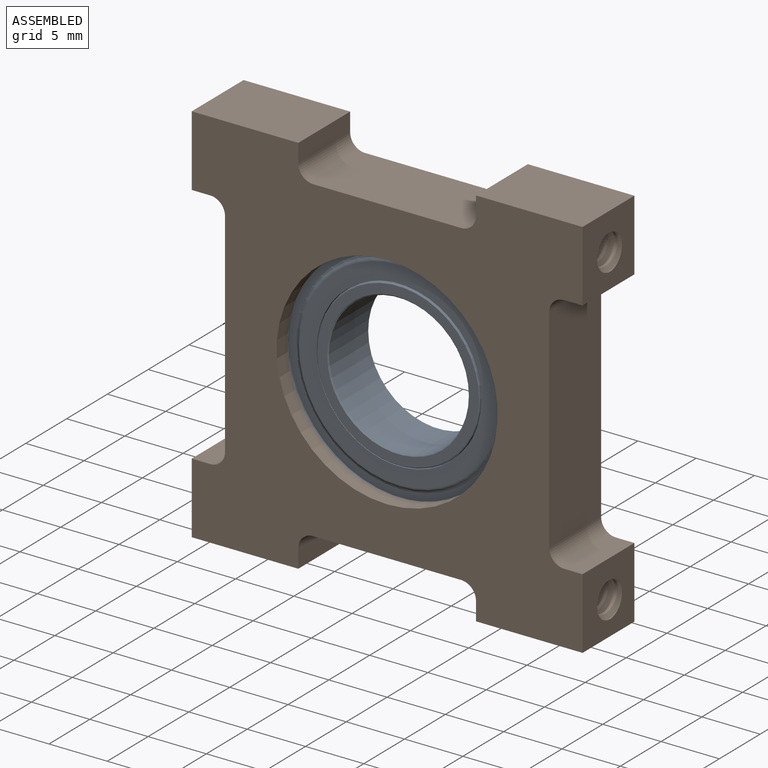
[diagram: assembled view]
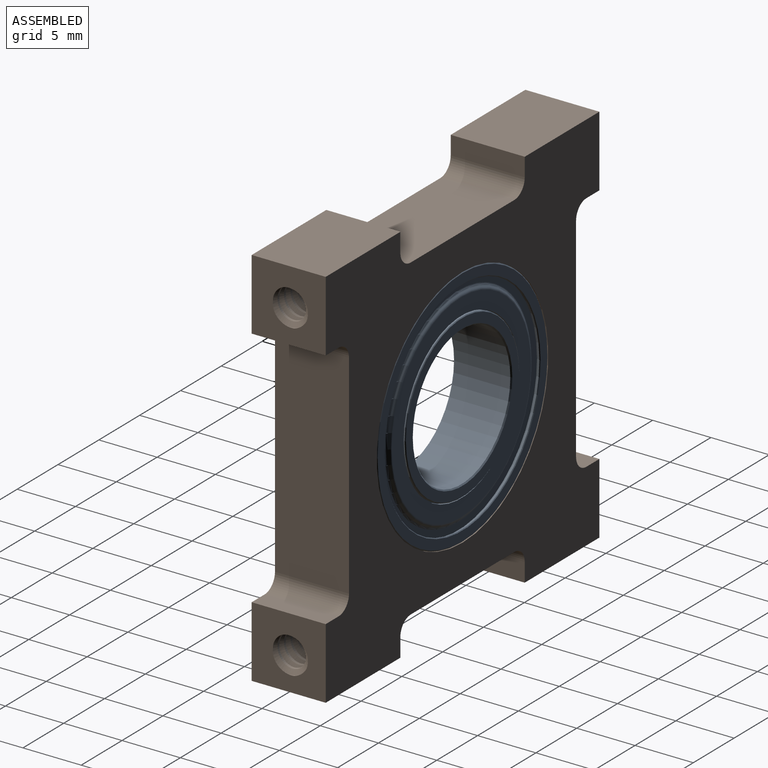
[diagram: assembled view, second angle]
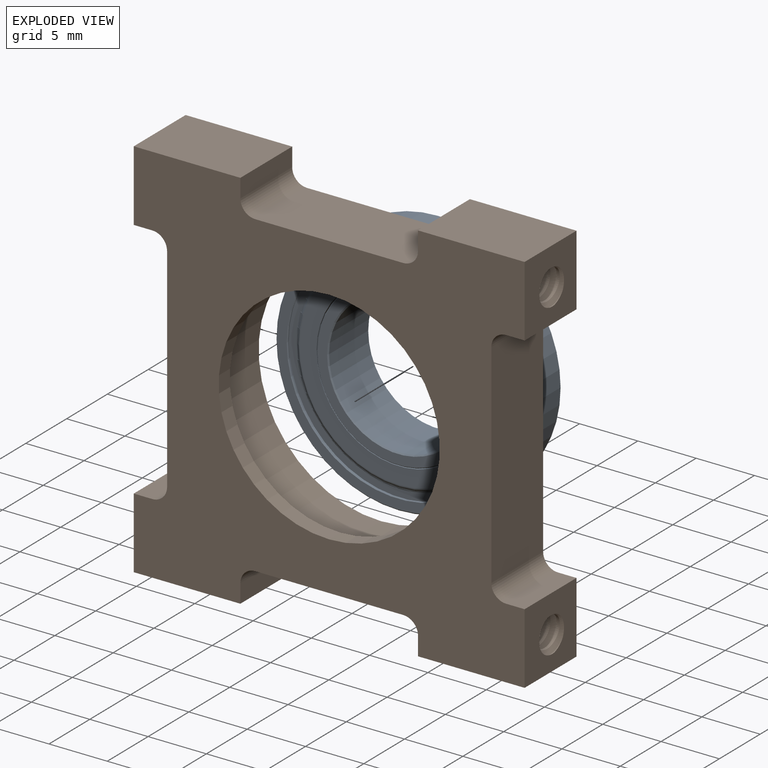
[diagram: exploded view]
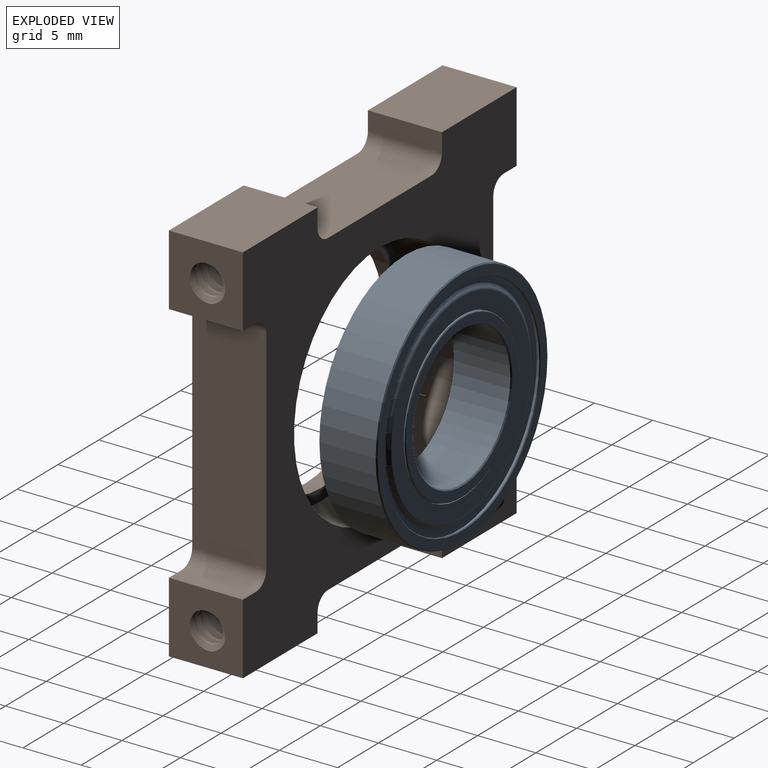
[diagram: exploded view, second angle]
ASSEMBLY  parts=2 mates=2
PART A: 36 faces, bbox 21x5x21 mm
  f0: cone r=6.94mm half-angle=45deg, axis (0,-1,0), area 3.9mm2, adj f20,f27
  f1: cone r=9.5mm half-angle=45deg, axis (0,1,0), area 5.4mm2, adj f21,f28
  f2: cone r=7mm half-angle=45deg, axis (0,1,0), area 3.9mm2, adj f18,f29
  f3: cone r=9.56mm half-angle=45deg, axis (0,-1,0), area 5.4mm2, adj f19,f26
  f4: cylinder r=7.08mm len=14.17mm, axis (0,-1,0), area 11.3mm2, adj f24,f35
  f5: cylinder r=7.08mm len=14.17mm, axis (0,1,0), area 11.3mm2, adj f25,f34
  f6: torus R=8.52mm, axis (0,-1,0), area 10.8mm2, adj f11,f24
  f7: torus R=8.98mm, axis (0,-1,0), area 11.1mm2, adj f11,f32
  f8: torus R=8.98mm, axis (0,1,0), area 11.1mm2, adj f10,f31
  f9: torus R=8.52mm, axis (0,1,0), area 10.8mm2, adj f10,f25
  f10: cone r=8.62mm half-angle=45deg, axis (0,-1,0), area 8.2mm2, adj f8,f9
  f11: cone r=8.88mm half-angle=45deg, axis (0,1,0), area 8.2mm2, adj f6,f7
  f12: cylinder r=9.63mm len=19.25mm, axis (0,-1,0), area 15.4mm2, adj f32,f33
  f13: cylinder r=9.63mm len=19.25mm, axis (0,1,0), area 15.4mm2, adj f30,f31
  f14: cone r=6mm half-angle=45deg, axis (0,1,0), area 5.4mm2, adj f22,f27
  f15: cone r=6.1mm half-angle=45deg, axis (0,-1,0), area 5.4mm2, adj f22,f29
  f16: cone r=10.4mm half-angle=45deg, axis (0,-1,0), area 9.3mm2, adj f23,f28
  f17: cone r=10.5mm half-angle=45deg, axis (0,1,0), area 9.3mm2, adj f23,f26
  f18: cylinder r=7mm len=14mm, axis (0,-1,0), area 12.8mm2, adj f2,f35
  f19: cylinder r=9.5mm len=19mm, axis (0,-1,0), area 2.2mm2, adj f3,f33
  f20: cylinder r=7mm len=14mm, axis (0,1,0), area 12.8mm2, adj f0,f34
  f21: cylinder r=9.5mm len=19mm, axis (0,1,0), area 2.2mm2, adj f1,f30
  f22: cylinder r=6mm len=12mm, axis (0,-1,0), area 181mm2, adj f14,f15
  f23: cylinder r=10.5mm len=21mm, axis (0,-1,0), area 316.7mm2, adj f16,f17
  f24: plane 17.04x17.04mm, normal (0,-1,0), area 70.4mm2, adj f4,f6
  f25: plane 17.04x17.04mm, normal (0,1,0), area 70.4mm2, adj f5,f9
  f26: plane 20.8x20.8mm, normal (0,-1,0), area 52.5mm2, adj f3,f17
  f27: plane 13.87x13.87mm, normal (0,1,0), area 34.3mm2, adj f0,f14
  f28: plane 20.8x20.8mm, normal (0,1,0), area 52.5mm2, adj f1,f16
  f29: plane 13.87x13.87mm, normal (0,-1,0), area 34.3mm2, adj f2,f15
  f30: plane 19.25x19.25mm, normal (0,-1,0), area 7.6mm2, adj f13,f21
  f31: plane 19.25x19.25mm, normal (0,1,0), area 37.6mm2, adj f8,f13
  f32: plane 19.25x19.25mm, normal (0,-1,0), area 37.6mm2, adj f7,f12
  f33: plane 19.25x19.25mm, normal (0,1,0), area 7.6mm2, adj f12,f19
  f34: plane 14.17x14.17mm, normal (0,1,0), area 3.7mm2, adj f5,f20
  f35: plane 14.17x14.17mm, normal (0,-1,0), area 3.7mm2, adj f4,f18
PART B: 89 faces, bbox 34.2x6.5x33.2 mm
  f0: cylinder r=1.75mm len=6.54mm, axis (1,0,0), area 9mm2, adj f47,f86,f87,f88
  f1: cylinder r=1.75mm len=6.54mm, axis (1,0,0), area 9mm2, adj f48,f83,f84,f85
  f2: cylinder r=1.75mm len=6.54mm, axis (-1,0,0), area 9mm2, adj f46,f80,f81,f82
  f3: cylinder r=1.75mm len=6.54mm, axis (-1,0,0), area 9mm2, adj f49,f77,f78,f79
  f4: cylinder r=9.48mm len=18.97mm, axis (0,1,0), area 80.4mm2, adj f67,f68
  f5: cylinder r=10.5mm len=21mm, axis (0,1,0), area 329.9mm2, adj f66,f68
  f6: cylinder r=1.35mm len=2.71mm, axis (1,0,0), area 8.7mm2, adj f7,f15,f77,f78,f79
  f7: cylinder r=1.35mm len=2.71mm, axis (1,0,0), area 2mm2, adj f6,f8,f77,f78
  f8: cylinder r=1.35mm len=2.71mm, axis (1,0,0), area 2mm2, adj f7,f9,f77,f78
  f9: cylinder r=1.35mm len=2.71mm, axis (1,0,0), area 2mm2, adj f8,f10,f77,f78
  f10: cylinder r=1.35mm len=2.71mm, axis (1,0,0), area 2mm2, adj f9,f11,f77,f78
  f11: cylinder r=1.35mm len=2.71mm, axis (1,0,0), area 2mm2, adj f10,f12,f77,f78
  f12: cylinder r=1.35mm len=2.71mm, axis (1,0,0), area 2mm2, adj f11,f13,f77,f78
  f13: cylinder r=1.35mm len=2.71mm, axis (1,0,0), area 2mm2, adj f12,f14,f77,f78
  f14: cylinder r=1.35mm len=2.71mm, axis (1,0,0), area 1.2mm2, adj f13,f49,f77,f78
  f15: cone r=1.35mm half-angle=59deg, axis (1,0,0), area 6.7mm2, adj f6
  f16: cylinder r=1.35mm len=2.71mm, axis (1,0,0), area 8.7mm2, adj f17,f25,f80,f81,f82
  f17: cylinder r=1.35mm len=2.71mm, axis (1,0,0), area 2mm2, adj f16,f18,f80,f81
  f18: cylinder r=1.35mm len=2.71mm, axis (1,0,0), area 2mm2, adj f17,f19,f80,f81
  f19: cylinder r=1.35mm len=2.71mm, axis (1,0,0), area 2mm2, adj f18,f20,f80,f81
  f20: cylinder r=1.35mm len=2.71mm, axis (1,0,0), area 2mm2, adj f19,f21,f80,f81
  f21: cylinder r=1.35mm len=2.71mm, axis (1,0,0), area 2mm2, adj f20,f22,f80,f81
  f22: cylinder r=1.35mm len=2.71mm, axis (1,0,0), area 2mm2, adj f21,f23,f80,f81
  f23: cylinder r=1.35mm len=2.71mm, axis (1,0,0), area 2mm2, adj f22,f24,f80,f81
  f24: cylinder r=1.35mm len=2.71mm, axis (1,0,0), area 1.2mm2, adj f23,f46,f80,f81
  f25: cone r=1.35mm half-angle=59deg, axis (1,0,0), area 6.7mm2, adj f16
  f26: cylinder r=1.35mm len=2.71mm, axis (-1,0,0), area 8.7mm2, adj f27,f35,f83,f84,f85
  f27: cylinder r=1.35mm len=2.71mm, axis (-1,0,0), area 2mm2, adj f26,f28,f83,f84
  f28: cylinder r=1.35mm len=2.71mm, axis (-1,0,0), area 2mm2, adj f27,f29,f83,f84
  f29: cylinder r=1.35mm len=2.71mm, axis (-1,0,0), area 2mm2, adj f28,f30,f83,f84
  f30: cylinder r=1.35mm len=2.71mm, axis (-1,0,0), area 2mm2, adj f29,f31,f83,f84
  f31: cylinder r=1.35mm len=2.71mm, axis (-1,0,0), area 2mm2, adj f30,f32,f83,f84
  f32: cylinder r=1.35mm len=2.71mm, axis (-1,0,0), area 2mm2, adj f31,f33,f83,f84
  f33: cylinder r=1.35mm len=2.71mm, axis (-1,0,0), area 2mm2, adj f32,f34,f83,f84
  f34: cylinder r=1.35mm len=2.71mm, axis (-1,0,0), area 1.2mm2, adj f33,f48,f83,f84
  f35: cone r=1.35mm half-angle=59deg, axis (-1,0,0), area 6.7mm2, adj f26
  f36: cylinder r=1.35mm len=2.71mm, axis (-1,0,0), area 8.7mm2, adj f37,f45,f86,f87,f88
  f37: cylinder r=1.35mm len=2.71mm, axis (-1,0,0), area 2mm2, adj f36,f38,f86,f87
  f38: cylinder r=1.35mm len=2.71mm, axis (-1,0,0), area 2mm2, adj f37,f39,f86,f87
  f39: cylinder r=1.35mm len=2.71mm, axis (-1,0,0), area 2mm2, adj f38,f40,f86,f87
  f40: cylinder r=1.35mm len=2.71mm, axis (-1,0,0), area 2mm2, adj f39,f41,f86,f87
  f41: cylinder r=1.35mm len=2.71mm, axis (-1,0,0), area 2mm2, adj f40,f42,f86,f87
  f42: cylinder r=1.35mm len=2.71mm, axis (-1,0,0), area 2mm2, adj f41,f43,f86,f87
  f43: cylinder r=1.35mm len=2.71mm, axis (-1,0,0), area 2mm2, adj f42,f44,f86,f87
  f44: cylinder r=1.35mm len=2.71mm, axis (-1,0,0), area 1.2mm2, adj f43,f47,f86,f87
  f45: cone r=1.35mm half-angle=59deg, axis (-1,0,0), area 6.7mm2, adj f36
  f46: plane 6.54x6.29mm, normal (1,0,0), area 31.4mm2, adj f2,f24,f50,f65,f66,f67,f80,f81
  f47: plane 6.54x6.29mm, normal (-1,0,0), area 31.4mm2, adj f0,f44,f54,f55,f66,f67,f86,f87
  f48: plane 6.54x6.29mm, normal (-1,0,0), area 31.4mm2, adj f1,f34,f57,f58,f66,f67,f83,f84
  f49: plane 6.54x6.29mm, normal (1,0,0), area 31.4mm2, adj f3,f14,f62,f63,f66,f67,f77,f78
  f50: plane 9.14x6.35mm, normal (0,0,-1), area 58.1mm2, adj f46,f51,f66,f67
  f51: plane 6.35x1.6mm, normal (-1,0,0), area 10.1mm2, adj f50,f66,f67,f75
  f52: plane 12.7x6.35mm, normal (0,0,-1), area 80.6mm2, adj f66,f67,f74,f75
  f53: plane 6.35x1.6mm, normal (1,0,0), area 10.1mm2, adj f54,f66,f67,f74
  f54: plane 9.14x6.35mm, normal (0,0,-1), area 58.1mm2, adj f47,f53,f66,f67
  f55: plane 6.35x1.59mm, normal (0,0,1), area 10.1mm2, adj f47,f66,f67,f76
  f56: plane 18.29x6.35mm, normal (-1,0,0), area 116.1mm2, adj f66,f67,f73,f76
  f57: plane 6.35x1.59mm, normal (0,0,-1), area 10.1mm2, adj f48,f66,f67,f73
  f58: plane 9.14x6.35mm, normal (0,0,1), area 58.1mm2, adj f48,f59,f66,f67
  f59: plane 6.35x1.6mm, normal (1,0,0), area 10.1mm2, adj f58,f66,f67,f72
  f60: plane 12.7x6.35mm, normal (0,0,1), area 80.6mm2, adj f66,f67,f71,f72
  f61: plane 6.35x1.6mm, normal (-1,0,0), area 10.1mm2, adj f62,f66,f67,f71
  f62: plane 9.14x6.35mm, normal (0,0,1), area 58.1mm2, adj f49,f61,f66,f67
  f63: plane 6.35x1.59mm, normal (0,0,-1), area 10.1mm2, adj f49,f66,f67,f70
  f64: plane 18.29x6.35mm, normal (1,0,0), area 116.1mm2, adj f66,f67,f69,f70
  f65: plane 6.35x1.59mm, normal (0,0,1), area 10.1mm2, adj f46,f66,f67,f69
  f66: plane 33.53x33.02mm, normal (0,1,0), area 557.1mm2, adj f5,f46,f47,f48,f49,f50,f51,f52
  f67: plane 33.53x33.02mm, normal (0,-1,0), area 620.9mm2, adj f4,f46,f47,f48,f49,f50,f51,f52
  f68: plane 21x21mm, normal (0,1,0), area 63.8mm2, adj f4,f5
  f69: cylinder r=1.27mm len=6.35mm, axis (0,1,0), area 12.7mm2, adj f64,f65,f66,f67
  f70: cylinder r=1.27mm len=6.35mm, axis (0,1,0), area 12.7mm2, adj f63,f64,f66,f67
  f71: cylinder r=1.27mm len=6.35mm, axis (0,1,0), area 12.7mm2, adj f60,f61,f66,f67
  f72: cylinder r=1.27mm len=6.35mm, axis (0,1,0), area 12.7mm2, adj f59,f60,f66,f67
  f73: cylinder r=1.27mm len=6.35mm, axis (0,1,0), area 12.7mm2, adj f56,f57,f66,f67
  f74: cylinder r=1.27mm len=6.35mm, axis (0,1,0), area 12.7mm2, adj f52,f53,f66,f67
  f75: cylinder r=1.27mm len=6.35mm, axis (0,1,0), area 12.7mm2, adj f51,f52,f66,f67
  f76: cylinder r=1.27mm len=6.35mm, axis (0,1,0), area 12.7mm2, adj f55,f56,f66,f67
  f77: bspline ~7.29x3.49mm, area 39.6mm2, adj f3,f6,f7,f8,f9,f10,f11,f12
  f78: bspline ~7.06x3.5mm, area 39.6mm2, adj f3,f6,f7,f8,f9,f10,f11,f12
  f79: cone r=0.98mm half-angle=55deg, axis (1,0,0), area 1.9mm2, adj f3,f6,f77,f78
  f80: bspline ~7.29x3.49mm, area 39.6mm2, adj f2,f16,f17,f18,f19,f20,f21,f22
  f81: bspline ~7.06x3.5mm, area 39.6mm2, adj f2,f16,f17,f18,f19,f20,f21,f22
  f82: cone r=0.98mm half-angle=55deg, axis (1,0,0), area 1.9mm2, adj f2,f16,f80,f81
  f83: bspline ~7.29x3.49mm, area 39.6mm2, adj f1,f26,f27,f28,f29,f30,f31,f32
  f84: bspline ~7.06x3.5mm, area 39.6mm2, adj f1,f26,f27,f28,f29,f30,f31,f32
  f85: cone r=0.98mm half-angle=55deg, axis (-1,0,0), area 1.9mm2, adj f1,f26,f83,f84
  f86: bspline ~7.29x3.49mm, area 39.6mm2, adj f0,f36,f37,f38,f39,f40,f41,f42
  f87: bspline ~7.06x3.5mm, area 39.6mm2, adj f0,f36,f37,f38,f39,f40,f41,f42
  f88: cone r=0.98mm half-angle=55deg, axis (-1,0,0), area 1.9mm2, adj f0,f36,f86,f87
PLACE A rot(axis=(0,1,0),90deg) t=(-28.86,6.51,14.64)mm
PLACE B t=(-28.86,2.66,14.64)mm fixed
MATE planar B.f4 <-> A.f0  axis (0,1,0) through (-28.86,4.01,14.64)mm
MATE cylindrical A.f0 <-> B.f4  axis (0,-1,0) through (-28.86,6.51,14.64)mm
